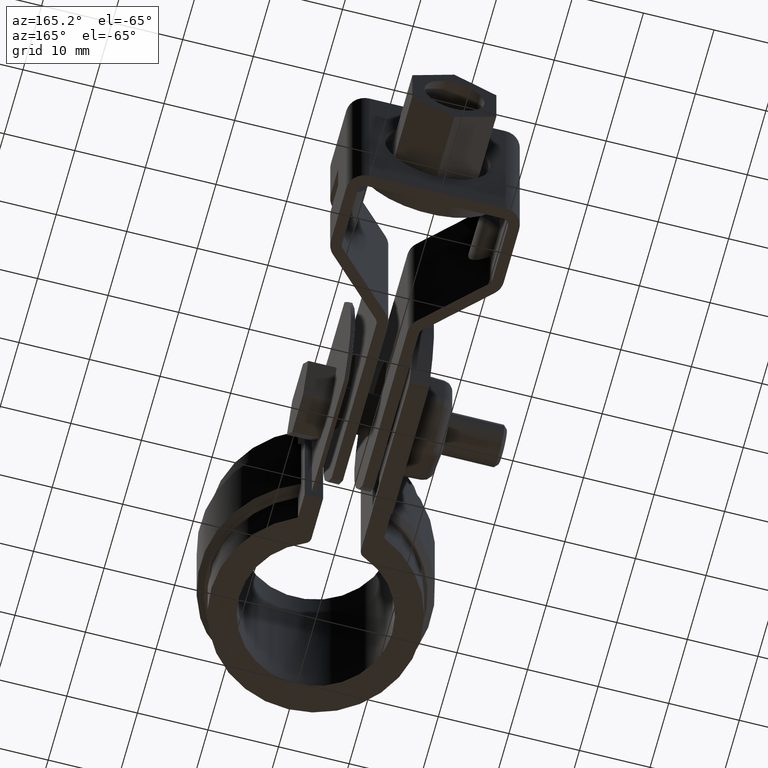
[diagram: clean part render]
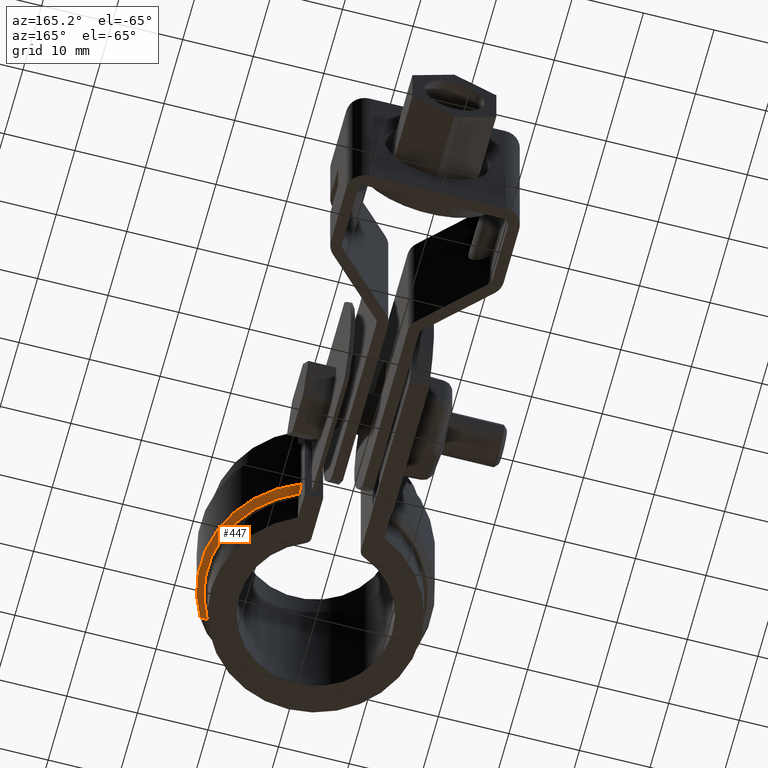
[diagram: same view with one face highlighted and labeled with its STEP entity id]
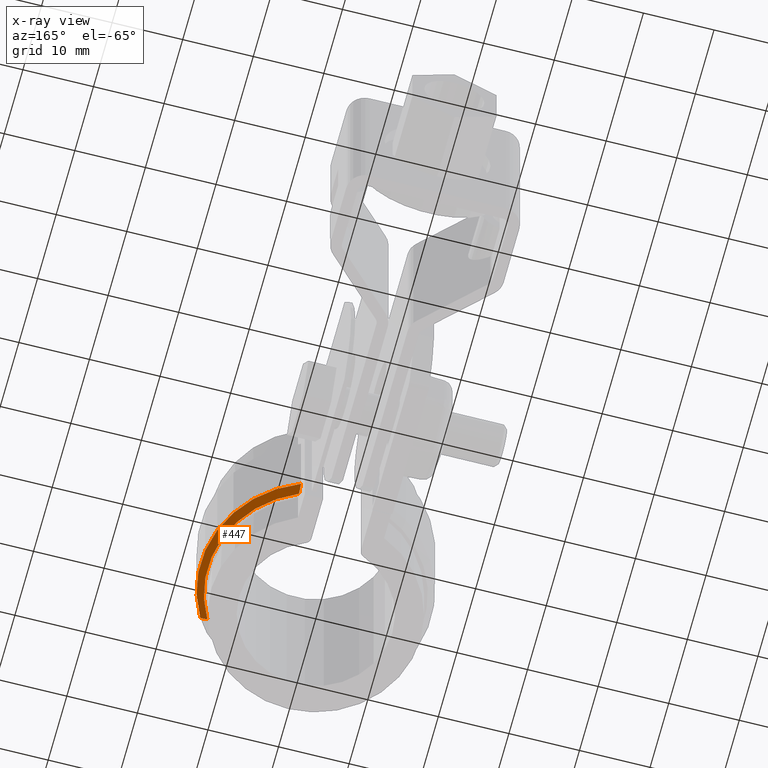
[diagram: x-ray of the same camera — body ghosted, the highlighted face saturated]
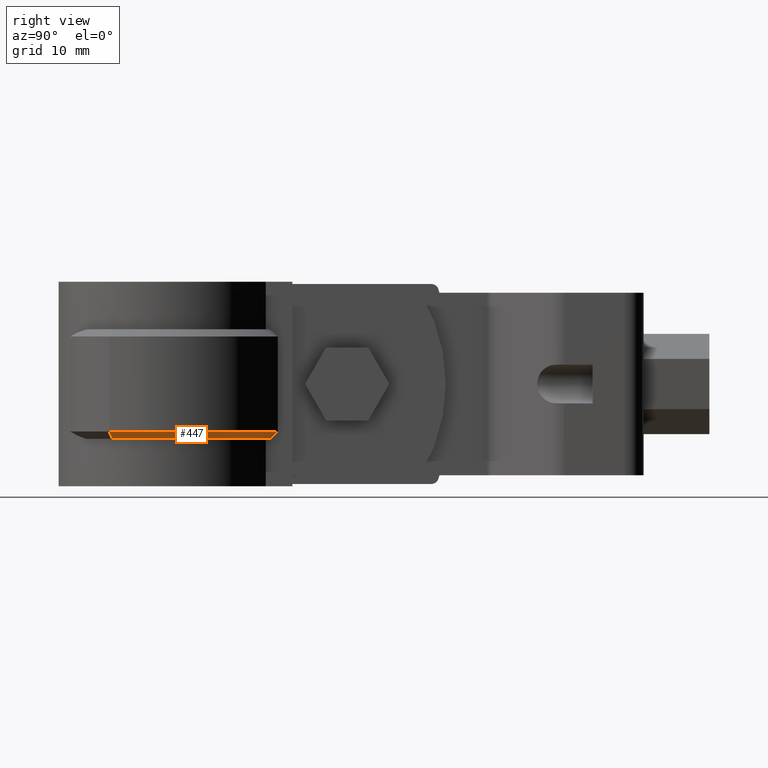
[diagram: same view with one face highlighted and labeled with its STEP entity id]
A machine part, auxiliary view. The second image highlights one B-rep face of the part: STEP entity #447.
The next image is the same camera in x-ray: the body ghosted, the highlighted face saturated — about 0% of this face is hidden behind the body in this view.
A second angle (right view) of the same face is appended — the face is thin or edge-on in the first view.
In plain terms, the highlighted conical surface has half-angle 45 deg.
Its self-contained STEP definition (entity closure, byte-faithful):
#447 = ADVANCED_FACE( '', ( #864 ), #865, .T. );
#864 = FACE_OUTER_BOUND( '', #1945, .T. );
#865 = CONICAL_SURFACE( '', #1946, 15.3450000000000, 0.785398163397447 );
#1945 = EDGE_LOOP( '', ( #4299, #4300, #4301, #4302 ) );
#1946 = AXIS2_PLACEMENT_3D( '', #4303, #4304, #4305 );
#4299 = ORIENTED_EDGE( '', *, *, #6583, .F. );
#4300 = ORIENTED_EDGE( '', *, *, #6584, .F. );
#4301 = ORIENTED_EDGE( '', *, *, #6585, .F. );
#4302 = ORIENTED_EDGE( '', *, *, #6586, .F. );
#4303 = CARTESIAN_POINT( '', ( -8.67361737988404E-016, 0.000000000000000, -20.0000000000000 ) );
#4304 = DIRECTION( '', ( 0.000000000000000, 0.000000000000000, 1.00000000000000 ) );
#4305 = DIRECTION( '', ( 1.00000000000000, 0.000000000000000, 0.000000000000000 ) );
#6583 = EDGE_CURVE( '', #7704, #7705, #7706, .T. );
#6584 = EDGE_CURVE( '', #7707, #7704, #7708, .T. );
#6585 = EDGE_CURVE( '', #7709, #7707, #7710, .T. );
#6586 = EDGE_CURVE( '', #7705, #7709, #7711, .F. );
#7704 = VERTEX_POINT( '', #10696 );
#7705 = VERTEX_POINT( '', #10697 );
#7706 = B_SPLINE_CURVE_WITH_KNOTS( '', 3, ( #10698, #10699, #10700, #10701 ), .UNSPECIFIED., .F., .F., ( 4, 4 ), ( 1.73472347597681E-018, 0.00147452920226637 ), .UNSPECIFIED. );
#7707 = VERTEX_POINT( '', #10702 );
#7708 = CIRCLE( '', #10703, 16.3450000000000 );
#7709 = VERTEX_POINT( '', #10704 );
#7710 = LINE( '', #10705, #10706 );
#7711 = CIRCLE( '', #10707, 15.3450000000000 );
#10696 = CARTESIAN_POINT( '', ( 6.10000000000000, 15.1640701989934, -19.0000000000000 ) );
#10697 = CARTESIAN_POINT( '', ( 6.10000000000000, 14.0804483238283, -20.0000000000000 ) );
#10698 = CARTESIAN_POINT( '', ( 6.10000000000000, 15.1640701989934, -19.0000000000000 ) );
#10699 = CARTESIAN_POINT( '', ( 6.10000000000000, 14.8037474765965, -19.3342893274224 ) );
#10700 = CARTESIAN_POINT( '', ( 6.10000000000000, 14.4425998011444, -19.6676927232488 ) );
#10701 = CARTESIAN_POINT( '', ( 6.10000000000000, 14.0804483238283, -20.0000000000000 ) );
#10702 = CARTESIAN_POINT( '', ( 14.2722871537212, -7.96623150565710, -19.0000000000000 ) );
#10703 = AXIS2_PLACEMENT_3D( '', #12588, #12589, #12590 );
#10704 = CARTESIAN_POINT( '', ( 13.3990973615083, -7.47885117493473, -20.0000000000000 ) );
#10705 = CARTESIAN_POINT( '', ( 13.3990973615083, -7.47885117493473, -20.0000000000000 ) );
#10706 = VECTOR( '', #12591, 1000.00000000000 );
#10707 = AXIS2_PLACEMENT_3D( '', #12592, #12593, #12594 );
#12588 = CARTESIAN_POINT( '', ( -8.67361737988404E-016, 0.000000000000000, -19.0000000000000 ) );
#12589 = DIRECTION( '', ( 0.000000000000000, 0.000000000000000, 1.00000000000000 ) );
#12590 = DIRECTION( '', ( 1.00000000000000, 0.000000000000000, 0.000000000000000 ) );
#12591 = DIRECTION( '', ( 0.617438423336674, -0.344629936870729, 0.707106781186547 ) );
#12592 = CARTESIAN_POINT( '', ( -8.67361737988404E-016, 0.000000000000000, -20.0000000000000 ) );
#12593 = DIRECTION( '', ( 0.000000000000000, 0.000000000000000, 1.00000000000000 ) );
#12594 = DIRECTION( '', ( 1.00000000000000, 0.000000000000000, 0.000000000000000 ) );